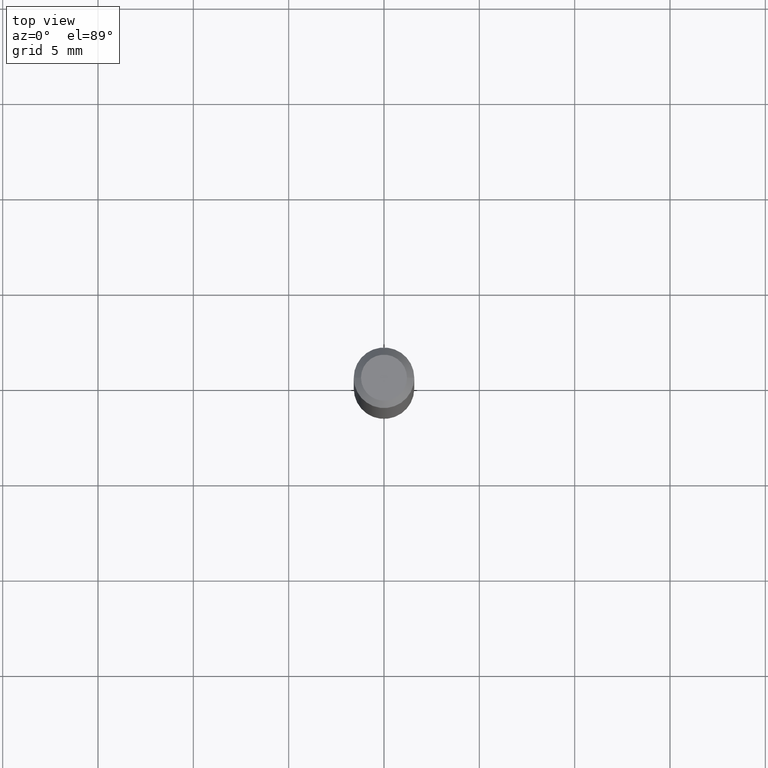
[diagram: clean part render]
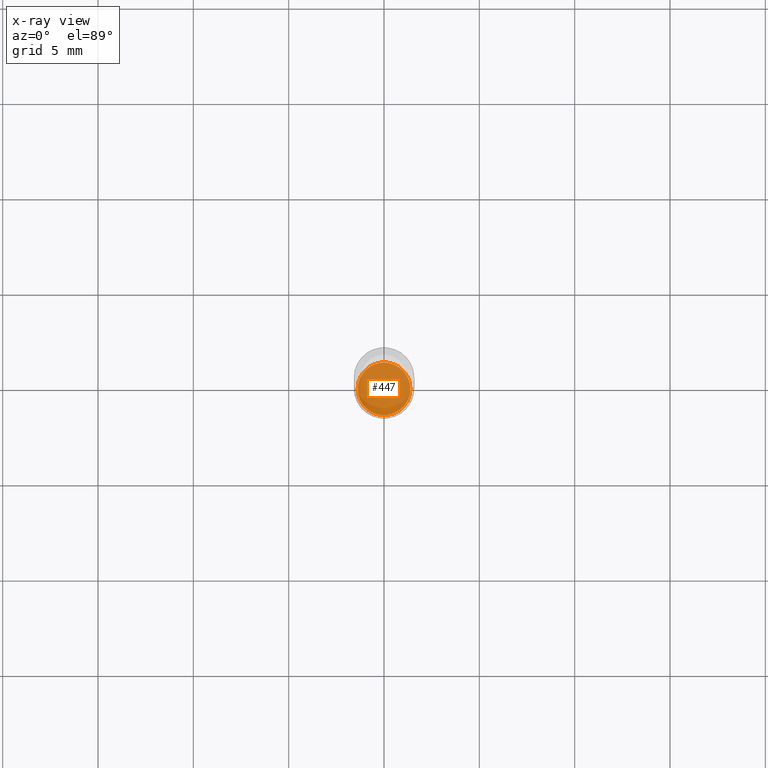
[diagram: x-ray — body ghosted, one internal face saturated and labeled with its STEP entity id]
A machine part, top view, then the same camera in x-ray: the body is ghosted and one INTERNAL B-rep face — a face not visible from any outside direction — is saturated and labeled: STEP entity #447.
In plain terms, the highlighted planar face has unit normal (-0, 0, 1).
Its self-contained STEP definition (entity closure, byte-faithful):
#6 = DIRECTION ( 'NONE',  ( -2.445468806185136597E-29, 3.491481338843145583E-15, 1.000000000000000000 ) ) ;
#38 = CARTESIAN_POINT ( 'NONE',  ( 3.264700856257157760E-29, -4.661127587355599122E-15, -1.335000000000000187 ) ) ;
#49 = CARTESIAN_POINT ( 'NONE',  ( 3.264700856257157760E-29, -4.661127587355599122E-15, -1.335000000000000187 ) ) ;
#68 = PLANE ( 'NONE',  #340 ) ;
#70 = CIRCLE ( 'NONE', #277, 0.05449999999999997208 ) ;
#86 = DIRECTION ( 'NONE',  ( 1.000000000000000000, -6.982962677686273810E-15, 0.000000000000000000 ) ) ;
#122 = DIRECTION ( 'NONE',  ( -2.445468806185136597E-29, 3.491481338843145583E-15, 1.000000000000000000 ) ) ;
#148 = DIRECTION ( 'NONE',  ( 1.000000000000000000, -6.982962677686273810E-15, 0.000000000000000000 ) ) ;
#166 = VERTEX_POINT ( 'NONE', #404 ) ;
#221 = CIRCLE ( 'NONE', #376, 0.05449999999999997208 ) ;
#277 = AXIS2_PLACEMENT_3D ( 'NONE', #38, #122, #148 ) ;
#313 = CARTESIAN_POINT ( 'NONE',  ( -0.05449999999999997208, -4.271232569192233370E-15, -1.335000000000000187 ) ) ;
#316 = EDGE_LOOP ( 'NONE', ( #469, #324 ) ) ;
#317 = VERTEX_POINT ( 'NONE', #313 ) ;
#324 = ORIENTED_EDGE ( 'NONE', *, *, #459, .F. ) ;
#336 = EDGE_CURVE ( 'NONE', #166, #317, #70, .T. ) ;
#340 = AXIS2_PLACEMENT_3D ( 'NONE', #433, #512, #471 ) ;
#376 = AXIS2_PLACEMENT_3D ( 'NONE', #49, #6, #86 ) ;
#404 = CARTESIAN_POINT ( 'NONE',  ( 0.05449999999999997208, -5.041699053289501100E-15, -1.335000000000000187 ) ) ;
#432 = FACE_OUTER_BOUND ( 'NONE', #316, .T. ) ;
#433 = CARTESIAN_POINT ( 'NONE',  ( 3.264700856257157760E-29, -4.661127587355599122E-15, -1.335000000000000187 ) ) ;
#447 = ADVANCED_FACE ( 'NONE', ( #432 ), #68, .F. ) ;
#459 = EDGE_CURVE ( 'NONE', #317, #166, #221, .T. ) ;
#469 = ORIENTED_EDGE ( 'NONE', *, *, #336, .F. ) ;
#471 = DIRECTION ( 'NONE',  ( 1.000000000000000000, -6.982962677686265922E-15, 4.876176775795935793E-29 ) ) ;
#512 = DIRECTION ( 'NONE',  ( -2.438088387897960049E-29, 3.491481338843145188E-15, 1.000000000000000000 ) ) ;